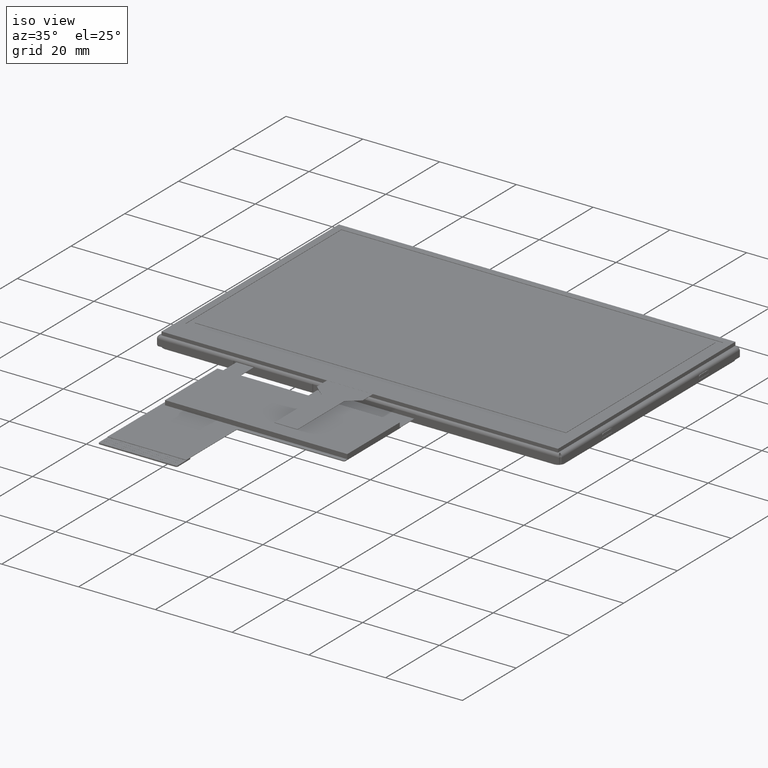
[diagram: clean part render]
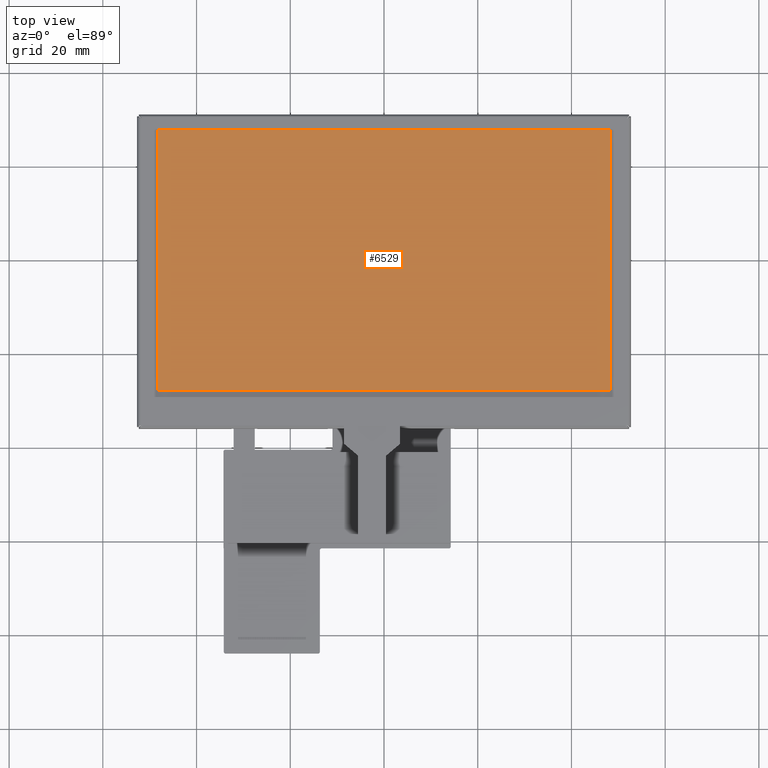
[diagram: tour spotlight — one face highlighted and labeled with its STEP entity id]
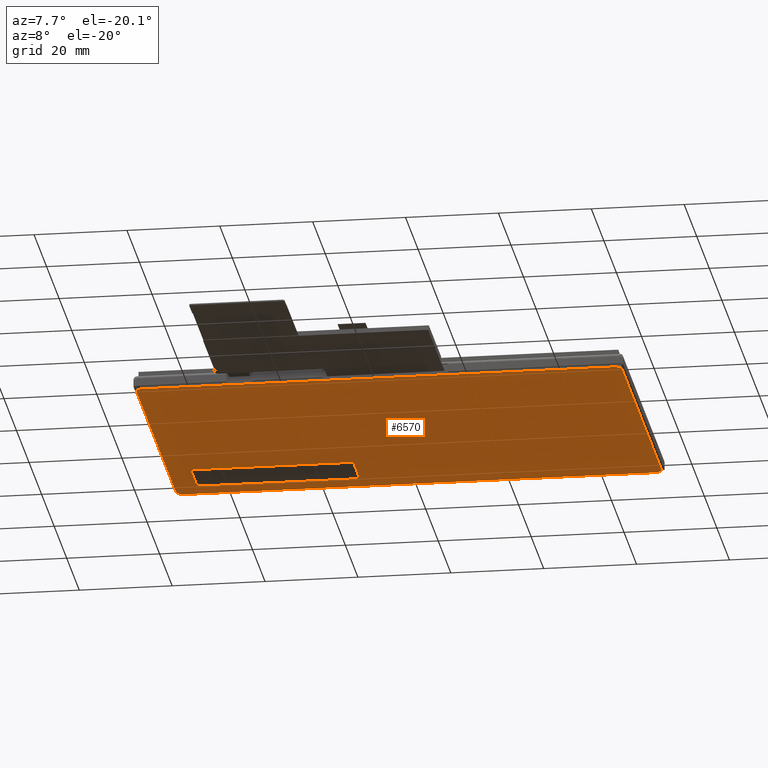
[diagram: tour spotlight — one face highlighted and labeled with its STEP entity id]
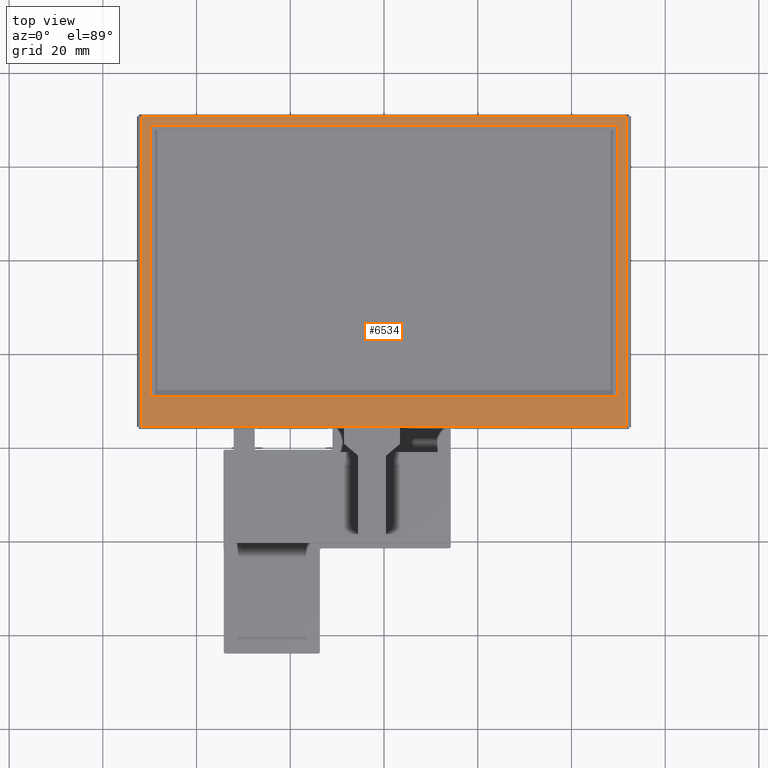
[diagram: tour spotlight — one face highlighted and labeled with its STEP entity id]
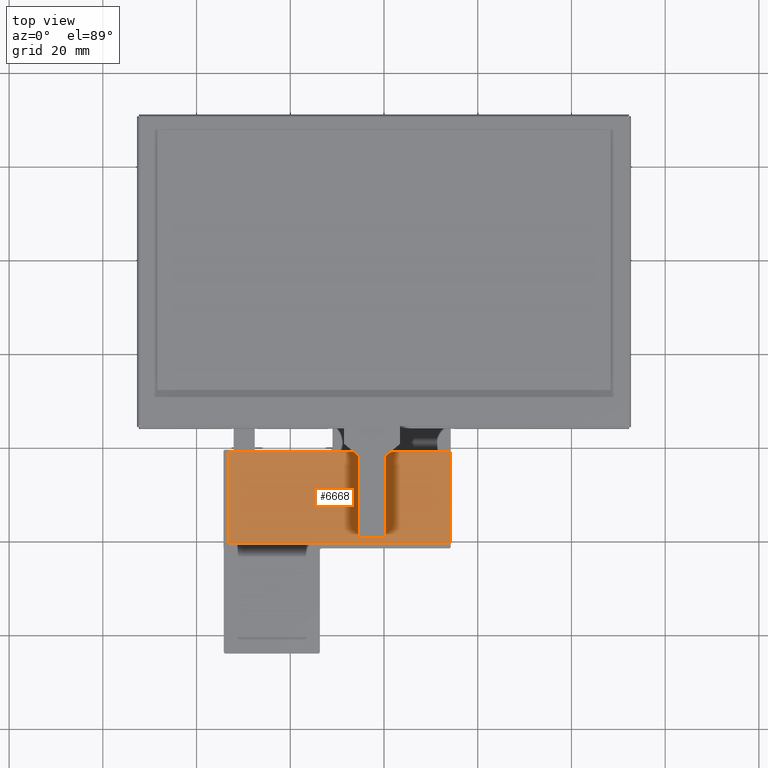
[diagram: tour spotlight — one face highlighted and labeled with its STEP entity id]
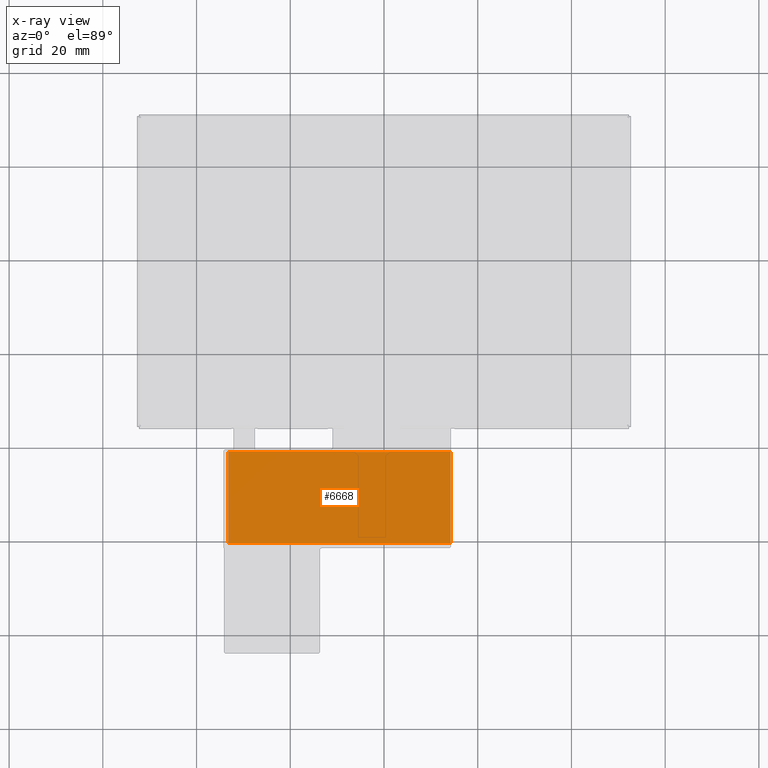
[diagram: x-ray of the same camera — body ghosted, this tour face saturated]
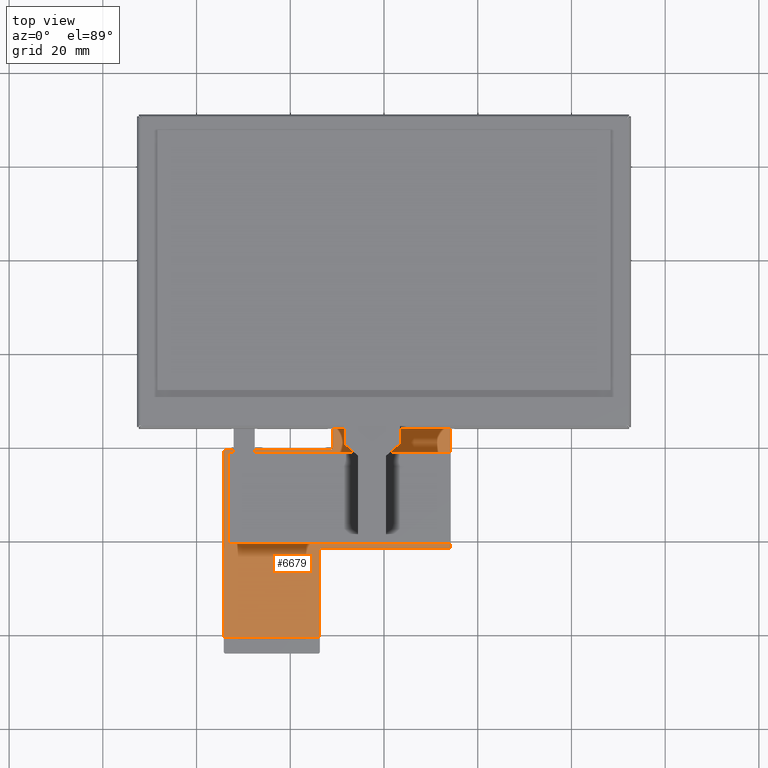
[diagram: tour spotlight — one face highlighted and labeled with its STEP entity id]
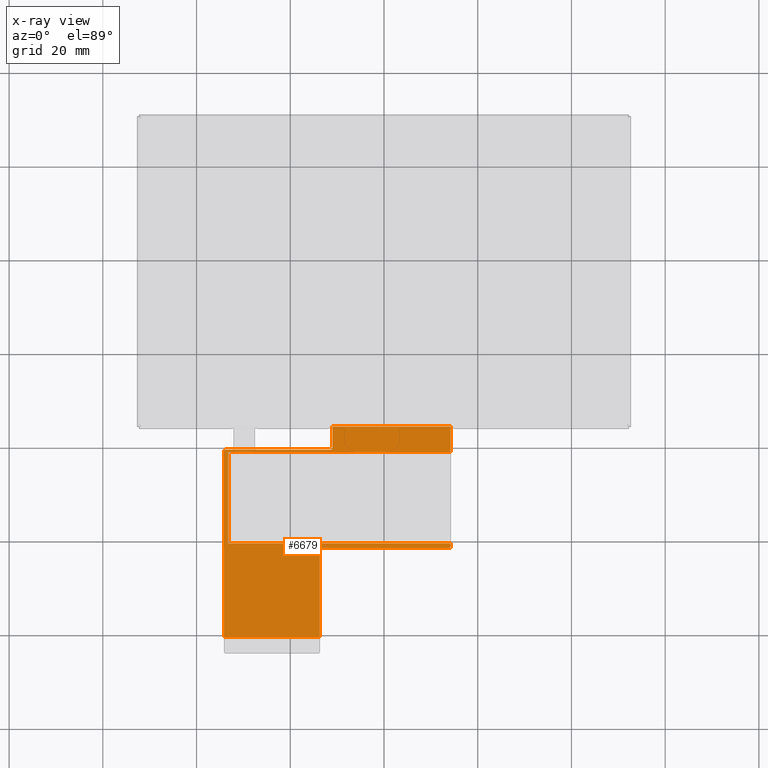
[diagram: x-ray of the same camera — body ghosted, this tour face saturated]
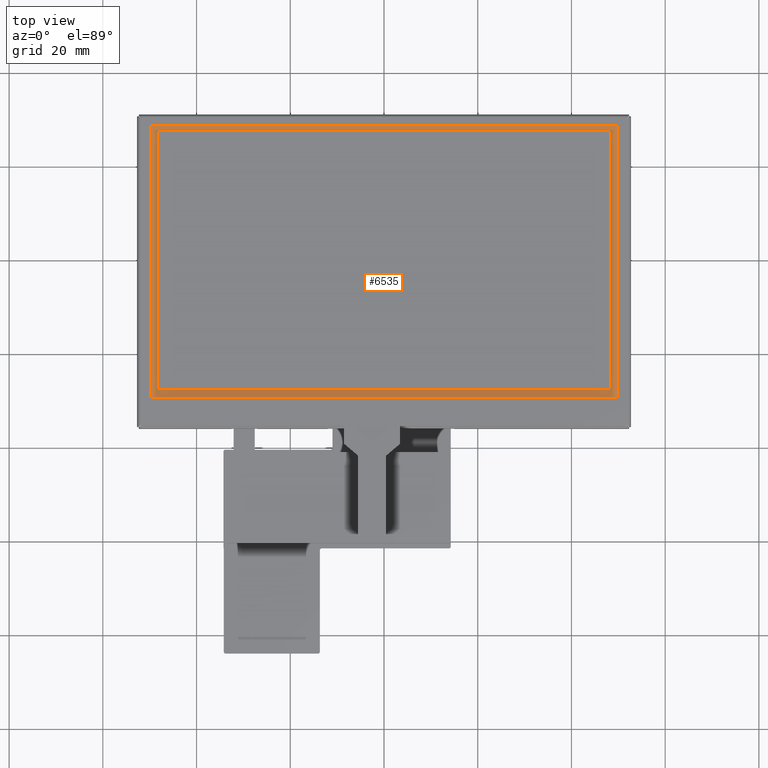
[diagram: tour spotlight — one face highlighted and labeled with its STEP entity id]
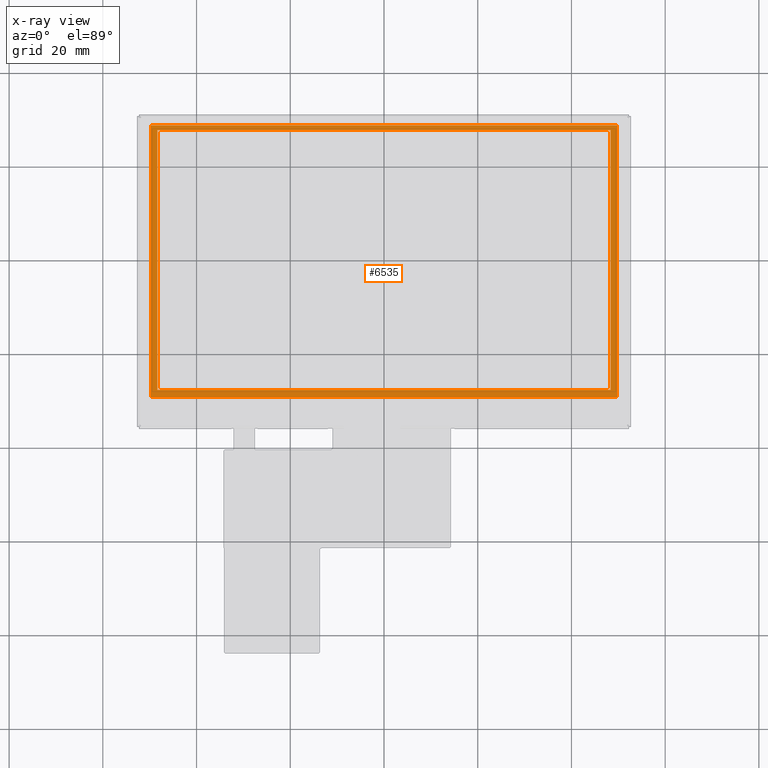
[diagram: x-ray of the same camera — body ghosted, this tour face saturated]
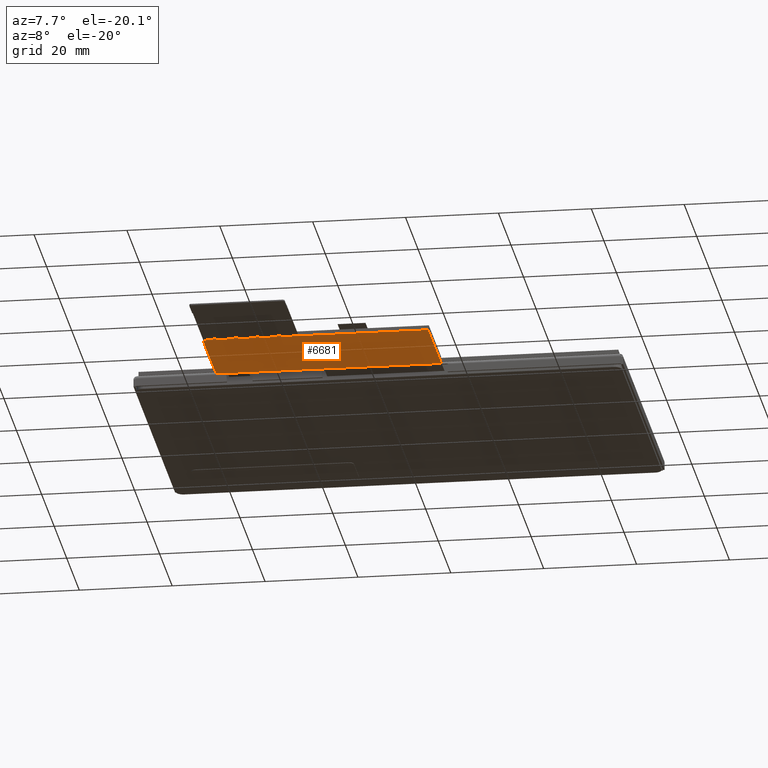
[diagram: tour spotlight — one face highlighted and labeled with its STEP entity id]
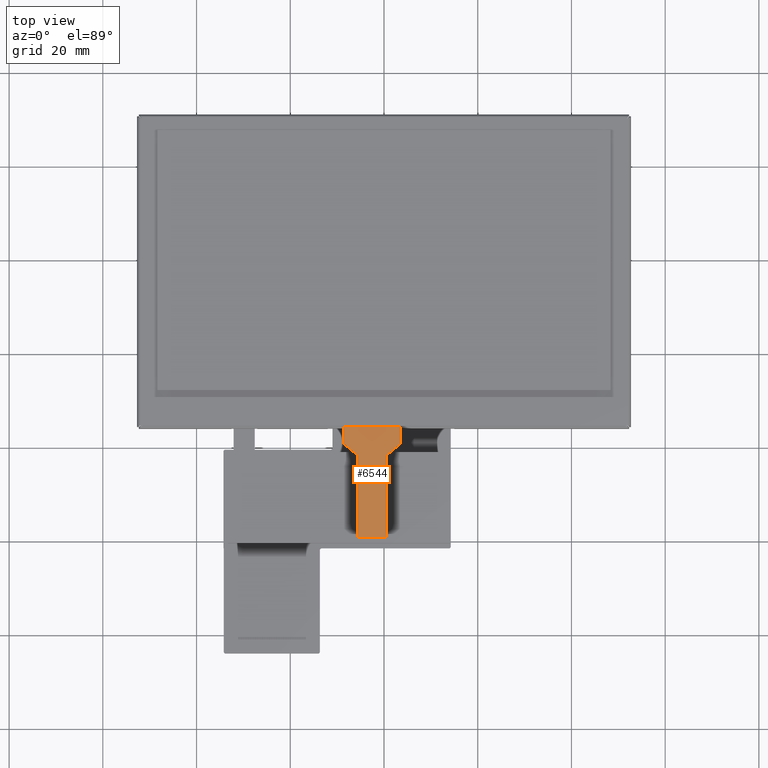
[diagram: tour spotlight — one face highlighted and labeled with its STEP entity id]
A machine part: a face-by-face anatomy tour. The part has 349 B-rep faces; the first image is the clean iso view, then the 8 largest visible faces are spotlighted one at a time (largest first), each with its STEP entity span.

Face 1 — top view, entity #6529. In plain terms, the highlighted planar face has unit normal (0, 0, 1).
Definition (entity closure, byte-faithful):
#69=PLANE('',#6911);
#381=FACE_OUTER_BOUND('',#730,.T.);
#730=EDGE_LOOP('',(#4575,#4576,#4577,#4578));
#1102=LINE('',#9039,#1995);
#1103=LINE('',#9041,#1996);
#1104=LINE('',#9043,#1997);
#1105=LINE('',#9044,#1998);
#1995=VECTOR('',#7347,10.);
#1996=VECTOR('',#7348,10.);
#1997=VECTOR('',#7349,10.);
#1998=VECTOR('',#7350,10.);
#2946=VERTEX_POINT('',#9037);
#2947=VERTEX_POINT('',#9038);
#2948=VERTEX_POINT('',#9040);
#2949=VERTEX_POINT('',#9042);
#3583=EDGE_CURVE('',#2946,#2947,#1102,.T.);
#3584=EDGE_CURVE('',#2947,#2948,#1103,.T.);
#3585=EDGE_CURVE('',#2948,#2949,#1104,.T.);
#3586=EDGE_CURVE('',#2949,#2946,#1105,.T.);
#4575=ORIENTED_EDGE('',*,*,#3583,.T.);
#4576=ORIENTED_EDGE('',*,*,#3584,.T.);
#4577=ORIENTED_EDGE('',*,*,#3585,.T.);
#4578=ORIENTED_EDGE('',*,*,#3586,.T.);
#6529=ADVANCED_FACE('',(#381),#69,.T.);
#6911=AXIS2_PLACEMENT_3D('',#9036,#7345,#7346);
#7345=DIRECTION('center_axis',(0.,0.,1.));
#7346=DIRECTION('ref_axis',(1.,-2.16453909658425E-16,0.));
#7347=DIRECTION('',(2.16453909658425E-16,1.,0.));
#7348=DIRECTION('',(-1.,2.16453909658425E-16,0.));
#7349=DIRECTION('',(-2.64157342721367E-17,-1.,0.));
#7350=DIRECTION('',(1.,-9.01617351922745E-17,0.));
#9036=CARTESIAN_POINT('Origin',(-51.6500000000002,-35.3720000000001,0.));
#9037=CARTESIAN_POINT('',(48.3499999999998,-27.6720000000002,0.));
#9038=CARTESIAN_POINT('',(48.3499999999998,27.8279999999999,0.));
#9039=CARTESIAN_POINT('',(48.3499999999998,-31.5220000000002,0.));
#9040=CARTESIAN_POINT('',(-48.3500000000004,27.8279999999999,0.));
#9041=CARTESIAN_POINT('',(-1.6500000000002,27.8279999999998,0.));
#9042=CARTESIAN_POINT('',(-48.3500000000004,-27.6720000000002,0.));
#9043=CARTESIAN_POINT('',(-48.3500000000004,-3.77200000000016,0.));
#9044=CARTESIAN_POINT('',(-50.0000000000003,-27.6720000000003,0.));

Face 2 — auxiliary view, entity #6570. In plain terms, the highlighted planar face has unit normal (0, 0, 1).
Definition (entity closure, byte-faithful):
#55=FACE_BOUND('',#779,.T.);
#105=PLANE('',#6964);
#422=FACE_OUTER_BOUND('',#778,.T.);
#778=EDGE_LOOP('',(#4795,#4796,#4797,#4798,#4799,#4800,#4801,#4802));
#779=EDGE_LOOP('',(#4803,#4804,#4805,#4806,#4807,#4808,#4809,#4810));
#1088=LINE('',#8998,#1981);
#1092=LINE('',#9010,#1985);
#1096=LINE('',#9022,#1989);
#1101=LINE('',#9034,#1994);
#1207=LINE('',#9264,#2100);
#1217=LINE('',#9305,#2110);
#1223=LINE('',#9361,#2116);
#1224=LINE('',#9362,#2117);
#1981=VECTOR('',#7305,10.);
#1985=VECTOR('',#7317,10.);
#1989=VECTOR('',#7329,10.);
#1994=VECTOR('',#7342,10.);
#2100=VECTOR('',#7532,101.36);
#2110=VECTOR('',#7550,63.);
#2116=VECTOR('',#7576,101.36);
#2117=VECTOR('',#7577,63.);
#2873=CIRCLE('',#6896,1.);
#2875=CIRCLE('',#6900,1.);
#2877=CIRCLE('',#6904,1.);
#2879=CIRCLE('',#6908,1.);
#2884=CIRCLE('',#6953,1.6);
#2888=CIRCLE('',#6959,1.6);
#2890=CIRCLE('',#6962,1.6);
#2892=CIRCLE('',#6965,1.6);
#2932=VERTEX_POINT('',#8991);
#2933=VERTEX_POINT('',#8993);
#2934=VERTEX_POINT('',#8997);
#2937=VERTEX_POINT('',#9005);
#2938=VERTEX_POINT('',#9009);
#2941=VERTEX_POINT('',#9017);
#2942=VERTEX_POINT('',#9021);
#2945=VERTEX_POINT('',#9029);
#3026=VERTEX_POINT('',#9261);
#3027=VERTEX_POINT('',#9263);
#3034=VERTEX_POINT('',#9287);
#3038=VERTEX_POINT('',#9304);
#3040=VERTEX_POINT('',#9319);
#3047=VERTEX_POINT('',#9344);
#3049=VERTEX_POINT('',#9358);
#3050=VERTEX_POINT('',#9359);
#3561=EDGE_CURVE('',#2933,#2932,#2873,.T.);
#3563=EDGE_CURVE('',#2934,#2933,#1088,.T.);
#3567=EDGE_CURVE('',#2937,#2934,#2875,.T.);
#3569=EDGE_CURVE('',#2938,#2937,#1092,.T.);
#3573=EDGE_CURVE('',#2941,#2938,#2877,.T.);
#3575=EDGE_CURVE('',#2942,#2941,#1096,.T.);
#3579=EDGE_CURVE('',#2945,#2942,#2879,.T.);
#3582=EDGE_CURVE('',#2932,#2945,#1101,.T.);
#3692=EDGE_CURVE('',#3026,#3027,#1207,.T.);
#3701=EDGE_CURVE('',#3034,#3027,#2884,.T.);
#3706=EDGE_CURVE('',#3034,#3038,#1217,.T.);
#3711=EDGE_CURVE('',#3040,#3038,#2888,.T.);
#3719=EDGE_CURVE('',#3026,#3047,#2890,.T.);
#3722=EDGE_CURVE('',#3049,#3050,#2892,.T.);
#3723=EDGE_CURVE('',#3040,#3050,#1223,.T.);
#3724=EDGE_CURVE('',#3049,#3047,#1224,.T.);
#4795=ORIENTED_EDGE('',*,*,#3722,.T.);
#4796=ORIENTED_EDGE('',*,*,#3723,.F.);
#4797=ORIENTED_EDGE('',*,*,#3711,.T.);
#4798=ORIENTED_EDGE('',*,*,#3706,.F.);
#4799=ORIENTED_EDGE('',*,*,#3701,.T.);
#4800=ORIENTED_EDGE('',*,*,#3692,.F.);
#4801=ORIENTED_EDGE('',*,*,#3719,.T.);
#4802=ORIENTED_EDGE('',*,*,#3724,.F.);
#4803=ORIENTED_EDGE('',*,*,#3561,.T.);
#4804=ORIENTED_EDGE('',*,*,#3582,.T.);
#4805=ORIENTED_EDGE('',*,*,#3579,.T.);
#4806=ORIENTED_EDGE('',*,*,#3575,.T.);
#4807=ORIENTED_EDGE('',*,*,#3573,.T.);
#4808=ORIENTED_EDGE('',*,*,#3569,.T.);
#4809=ORIENTED_EDGE('',*,*,#3567,.T.);
#4810=ORIENTED_EDGE('',*,*,#3563,.T.);
#6570=ADVANCED_FACE('',(#422,#55),#105,.F.);
#6896=AXIS2_PLACEMENT_3D('',#8994,#7300,#7301);
#6900=AXIS2_PLACEMENT_3D('',#9006,#7312,#7313);
#6904=AXIS2_PLACEMENT_3D('',#9018,#7324,#7325);
#6908=AXIS2_PLACEMENT_3D('',#9030,#7336,#7337);
#6953=AXIS2_PLACEMENT_3D('',#9288,#7542,#7543);
#6959=AXIS2_PLACEMENT_3D('',#9320,#7558,#7559);
#6962=AXIS2_PLACEMENT_3D('',#9346,#7568,#7569);
#6964=AXIS2_PLACEMENT_3D('',#9357,#7572,#7573);
#6965=AXIS2_PLACEMENT_3D('',#9360,#7574,#7575);
#7300=DIRECTION('center_axis',(0.,0.,1.));
#7301=DIRECTION('ref_axis',(-0.707106781186548,0.707106781186547,0.));
#7305=DIRECTION('',(-1.,2.16453909658425E-16,0.));
#7312=DIRECTION('center_axis',(0.,0.,1.));
#7313=DIRECTION('ref_axis',(0.707106781186548,0.707106781186547,0.));
#7317=DIRECTION('',(2.16453909658425E-16,1.,0.));
#7324=DIRECTION('center_axis',(0.,0.,1.));
#7325=DIRECTION('ref_axis',(0.707106781186548,-0.707106781186547,0.));
#7329=DIRECTION('',(1.,-2.16453909658425E-16,0.));
#7336=DIRECTION('center_axis',(0.,0.,1.));
#7337=DIRECTION('ref_axis',(-0.707106781186548,-0.707106781186547,0.));
#7342=DIRECTION('',(-2.16453909658425E-16,-1.,0.));
#7532=DIRECTION('',(1.,-2.16453909658425E-16,0.));
#7542=DIRECTION('center_axis',(0.,0.,-1.));
#7543=DIRECTION('ref_axis',(1.,-2.16453909658425E-16,0.));
#7550=DIRECTION('',(2.16453909658425E-16,1.,0.));
#7558=DIRECTION('center_axis',(0.,0.,-1.));
#7559=DIRECTION('ref_axis',(2.16453909658425E-16,1.,0.));
#7568=DIRECTION('center_axis',(0.,0.,-1.));
#7569=DIRECTION('ref_axis',(-2.16453909658425E-16,-1.,0.));
#7572=DIRECTION('center_axis',(0.,0.,1.));
#7573=DIRECTION('ref_axis',(1.,-2.16453909658425E-16,0.));
#7574=DIRECTION('center_axis',(0.,0.,-1.));
#7575=DIRECTION('ref_axis',(-1.,2.16453909658425E-16,0.));
#7576=DIRECTION('',(-1.,2.16453909658425E-16,0.));
#7577=DIRECTION('',(-2.16453909658425E-16,-1.,0.));
#8991=CARTESIAN_POINT('',(-47.3000000000002,24.7779999999998,-3.90000000000001));
#8993=CARTESIAN_POINT('',(-46.3000000000002,25.7779999999998,-3.90000000000001));
#8994=CARTESIAN_POINT('Origin',(-46.3000000000002,24.7779999999998,-3.90000000000001));
#8997=CARTESIAN_POINT('',(-13.3000000000002,25.7779999999998,-3.90000000000001));
#8998=CARTESIAN_POINT('',(-23.6600000000003,25.7779999999998,-3.90000000000001));
#9005=CARTESIAN_POINT('',(-12.3000000000002,24.7779999999998,-3.90000000000001));
#9006=CARTESIAN_POINT('Origin',(-13.3000000000002,24.7779999999998,-3.90000000000001));
#9009=CARTESIAN_POINT('',(-12.3000000000002,16.7779999999998,-3.90000000000001));
#9010=CARTESIAN_POINT('',(-12.3000000000002,11.7279999999998,-3.90000000000001));
#9017=CARTESIAN_POINT('',(-13.3000000000002,15.7779999999998,-3.90000000000001));
#9018=CARTESIAN_POINT('Origin',(-13.3000000000002,16.7779999999998,-3.90000000000001));
#9021=CARTESIAN_POINT('',(-46.3000000000002,15.7779999999998,-3.90000000000001));
#9022=CARTESIAN_POINT('',(-6.16000000000029,15.7779999999998,-3.90000000000001));
#9029=CARTESIAN_POINT('',(-47.3000000000002,16.7779999999998,-3.90000000000001));
#9030=CARTESIAN_POINT('Origin',(-46.3000000000002,16.7779999999998,-3.90000000000001));
#9034=CARTESIAN_POINT('',(-47.3000000000002,6.72799999999982,-3.90000000000001));
#9261=CARTESIAN_POINT('',(-50.7000000000004,-35.4220000000002,-3.90000000000001));
#9263=CARTESIAN_POINT('',(50.6599999999997,-35.4220000000002,-3.90000000000001));
#9264=CARTESIAN_POINT('',(-50.7000000000004,-35.4220000000002,-3.90000000000001));
#9287=CARTESIAN_POINT('',(52.2599999999997,-33.8220000000003,-3.90000000000001));
#9288=CARTESIAN_POINT('Origin',(50.6599999999997,-33.8220000000003,-3.90000000000001));
#9304=CARTESIAN_POINT('',(52.2599999999997,29.1779999999999,-3.90000000000001));
#9305=CARTESIAN_POINT('',(52.2599999999997,-33.8220000000003,-3.90000000000001));
#9319=CARTESIAN_POINT('',(50.6599999999997,30.7779999999998,-3.90000000000001));
#9320=CARTESIAN_POINT('Origin',(50.6599999999997,29.1779999999999,-3.90000000000001));
#9344=CARTESIAN_POINT('',(-52.3000000000003,-33.8220000000003,-3.90000000000001));
#9346=CARTESIAN_POINT('Origin',(-50.7000000000004,-33.8220000000003,-3.90000000000001));
#9357=CARTESIAN_POINT('Origin',(-0.0200000000003797,-2.3220000000002,-3.90000000000001));
#9358=CARTESIAN_POINT('',(-52.3000000000003,29.1779999999999,-3.90000000000001));
#9359=CARTESIAN_POINT('',(-50.7000000000004,30.7779999999998,-3.90000000000001));
#9360=CARTESIAN_POINT('Origin',(-50.7000000000004,29.1779999999999,-3.90000000000001));
#9361=CARTESIAN_POINT('',(50.6599999999997,30.7779999999998,-3.90000000000001));
#9362=CARTESIAN_POINT('',(-52.3000000000003,29.1779999999999,-3.90000000000001));

Face 3 — top view, entity #6534. In plain terms, the highlighted planar face has unit normal (0, 0, 1).
Definition (entity closure, byte-faithful):
#49=FACE_BOUND('',#737,.T.);
#74=PLANE('',#6916);
#386=FACE_OUTER_BOUND('',#736,.T.);
#736=EDGE_LOOP('',(#4603,#4604,#4605,#4606));
#737=EDGE_LOOP('',(#4607,#4608,#4609,#4610));
#1107=LINE('',#9050,#2000);
#1113=LINE('',#9062,#2006);
#1116=LINE('',#9068,#2009);
#1120=LINE('',#9075,#2013);
#1126=LINE('',#9088,#2019);
#1127=LINE('',#9090,#2020);
#1128=LINE('',#9092,#2021);
#1129=LINE('',#9093,#2022);
#2000=VECTOR('',#7354,66.);
#2006=VECTOR('',#7362,103.3);
#2009=VECTOR('',#7367,66.);
#2013=VECTOR('',#7373,103.3);
#2019=VECTOR('',#7381,10.);
#2020=VECTOR('',#7382,10.);
#2021=VECTOR('',#7383,10.);
#2022=VECTOR('',#7384,10.);
#2951=VERTEX_POINT('',#9047);
#2952=VERTEX_POINT('',#9049);
#2957=VERTEX_POINT('',#9060);
#2959=VERTEX_POINT('',#9066);
#2966=VERTEX_POINT('',#9086);
#2967=VERTEX_POINT('',#9087);
#2968=VERTEX_POINT('',#9089);
#2969=VERTEX_POINT('',#9091);
#3588=EDGE_CURVE('',#2952,#2951,#1107,.T.);
#3594=EDGE_CURVE('',#2951,#2957,#1113,.T.);
#3597=EDGE_CURVE('',#2957,#2959,#1116,.T.);
#3601=EDGE_CURVE('',#2959,#2952,#1120,.T.);
#3607=EDGE_CURVE('',#2966,#2967,#1126,.T.);
#3608=EDGE_CURVE('',#2967,#2968,#1127,.T.);
#3609=EDGE_CURVE('',#2968,#2969,#1128,.T.);
#3610=EDGE_CURVE('',#2969,#2966,#1129,.T.);
#4603=ORIENTED_EDGE('',*,*,#3601,.T.);
#4604=ORIENTED_EDGE('',*,*,#3588,.T.);
#4605=ORIENTED_EDGE('',*,*,#3594,.T.);
#4606=ORIENTED_EDGE('',*,*,#3597,.T.);
#4607=ORIENTED_EDGE('',*,*,#3607,.T.);
#4608=ORIENTED_EDGE('',*,*,#3608,.T.);
#4609=ORIENTED_EDGE('',*,*,#3609,.T.);
#4610=ORIENTED_EDGE('',*,*,#3610,.T.);
#6534=ADVANCED_FACE('',(#386,#49),#74,.T.);
#6916=AXIS2_PLACEMENT_3D('',#9085,#7379,#7380);
#7354=DIRECTION('',(2.16453909658425E-16,1.,0.));
#7362=DIRECTION('',(-1.,2.16453909658425E-16,0.));
#7367=DIRECTION('',(-2.16453909658425E-16,-1.,0.));
#7373=DIRECTION('',(1.,-2.16453909658425E-16,0.));
#7379=DIRECTION('center_axis',(0.,0.,1.));
#7380=DIRECTION('ref_axis',(1.,-2.16453909658425E-16,0.));
#7381=DIRECTION('',(-2.16453909658425E-16,-1.,0.));
#7382=DIRECTION('',(-1.,9.37156858305179E-17,0.));
#7383=DIRECTION('',(-1.80328498529229E-17,1.,0.));
#7384=DIRECTION('',(1.,-2.16453909658425E-16,0.));
#9047=CARTESIAN_POINT('',(51.6499999999999,30.6279999999998,0.));
#9049=CARTESIAN_POINT('',(51.6499999999999,-35.3720000000001,0.));
#9050=CARTESIAN_POINT('',(51.6499999999999,-35.3720000000001,0.));
#9060=CARTESIAN_POINT('',(-51.6500000000002,30.6279999999998,0.));
#9062=CARTESIAN_POINT('',(51.6499999999999,30.6279999999998,0.));
#9066=CARTESIAN_POINT('',(-51.6500000000002,-35.3720000000001,0.));
#9068=CARTESIAN_POINT('',(-51.6500000000002,30.6279999999998,0.));
#9075=CARTESIAN_POINT('',(-51.6500000000002,-35.3720000000001,0.));
#9085=CARTESIAN_POINT('Origin',(-51.6500000000002,-35.3720000000001,0.));
#9086=CARTESIAN_POINT('',(49.7499999999997,28.8279999999999,0.));
#9087=CARTESIAN_POINT('',(49.7499999999997,-29.1720000000001,0.));
#9088=CARTESIAN_POINT('',(49.7499999999997,-3.27200000000005,0.));
#9089=CARTESIAN_POINT('',(-49.7500000000002,-29.1720000000001,0.));
#9090=CARTESIAN_POINT('',(-0.950000000000273,-29.1720000000001,0.));
#9091=CARTESIAN_POINT('',(-49.7500000000002,28.8279999999999,0.));
#9092=CARTESIAN_POINT('',(-49.7500000000002,-32.2720000000001,0.));
#9093=CARTESIAN_POINT('',(-50.7000000000002,28.828,0.));

Face 4 — top view, entity #6668. An x-ray twin of the same camera follows (body ghosted, this face saturated) — the face is partly hidden behind the body. In plain terms, the highlighted planar face has unit normal (0, 0, 1).
Definition (entity closure, byte-faithful):
#178=PLANE('',#7076);
#520=FACE_OUTER_BOUND('',#883,.T.);
#883=EDGE_LOOP('',(#5311,#5312,#5313,#5314));
#1418=LINE('',#10740,#2311);
#1421=LINE('',#10746,#2314);
#1423=LINE('',#10750,#2316);
#1424=LINE('',#10751,#2317);
#2311=VECTOR('',#7989,47.5);
#2314=VECTOR('',#7994,19.5);
#2316=VECTOR('',#7998,19.5);
#2317=VECTOR('',#7999,47.5);
#3176=VERTEX_POINT('',#10737);
#3177=VERTEX_POINT('',#10739);
#3179=VERTEX_POINT('',#10745);
#3180=VERTEX_POINT('',#10749);
#3957=EDGE_CURVE('',#3177,#3176,#1418,.T.);
#3960=EDGE_CURVE('',#3179,#3177,#1421,.T.);
#3962=EDGE_CURVE('',#3176,#3180,#1423,.T.);
#3963=EDGE_CURVE('',#3180,#3179,#1424,.T.);
#5311=ORIENTED_EDGE('',*,*,#3960,.T.);
#5312=ORIENTED_EDGE('',*,*,#3957,.T.);
#5313=ORIENTED_EDGE('',*,*,#3962,.T.);
#5314=ORIENTED_EDGE('',*,*,#3963,.T.);
#6668=ADVANCED_FACE('',(#520),#178,.T.);
#7076=AXIS2_PLACEMENT_3D('',#10748,#7996,#7997);
#7989=DIRECTION('',(1.,-2.16453909658425E-16,0.));
#7994=DIRECTION('',(-2.16453909658425E-16,-1.,0.));
#7996=DIRECTION('center_axis',(0.,0.,1.));
#7997=DIRECTION('ref_axis',(1.,-2.16453909658425E-16,0.));
#7998=DIRECTION('',(2.16453909658425E-16,1.,0.));
#7999=DIRECTION('',(-1.,2.16453909658425E-16,0.));
#10737=CARTESIAN_POINT('',(14.2499999999998,-60.351999999753,-1.70000000000001));
#10739=CARTESIAN_POINT('',(-33.2400000000001,-60.351999999753,-1.70000000000001));
#10740=CARTESIAN_POINT('',(-33.2400000000001,-60.351999999753,-1.70000000000001));
#10745=CARTESIAN_POINT('',(-33.2400000000001,-40.85199999975,-1.70000000000001));
#10746=CARTESIAN_POINT('',(-33.2400000000001,-40.85199999975,-1.70000000000001));
#10748=CARTESIAN_POINT('Origin',(-11.0000000000002,-52.6707898480001,-1.70000000000001));
#10749=CARTESIAN_POINT('',(14.2499999999998,-40.85199999975,-1.70000000000001));
#10750=CARTESIAN_POINT('',(14.2499999999998,-60.351999999753,-1.70000000000001));
#10751=CARTESIAN_POINT('',(14.2599999999999,-40.85199999975,-1.70000000000001));

Face 5 — top view, entity #6679. An x-ray twin of the same camera follows (body ghosted, this face saturated) — the face is partly hidden behind the body. In plain terms, the highlighted planar face has unit normal (0, 0, 1).
Definition (entity closure, byte-faithful):
#184=PLANE('',#7098);
#531=FACE_OUTER_BOUND('',#894,.T.);
#894=EDGE_LOOP('',(#5367,#5368,#5369,#5370,#5371,#5372,#5373,#5374,#5375,
#5376,#5377,#5378,#5379,#5380,#5381,#5382));
#1212=LINE('',#9273,#2105);
#1416=LINE('',#10736,#2309);
#1420=LINE('',#10744,#2313);
#1427=LINE('',#10757,#2320);
#1432=LINE('',#10778,#2325);
#1450=LINE('',#10829,#2343);
#1453=LINE('',#10839,#2346);
#1454=LINE('',#10840,#2347);
#1455=LINE('',#10842,#2348);
#1456=LINE('',#10845,#2349);
#1457=LINE('',#10847,#2350);
#1458=LINE('',#10848,#2351);
#2105=VECTOR('',#7537,10.);
#2309=VECTOR('',#7987,47.5);
#2313=VECTOR('',#7993,19.5);
#2320=VECTOR('',#8004,9.597074687738);
#2325=VECTOR('',#8017,22.38707468774);
#2343=VECTOR('',#8061,21.65);
#2346=VECTOR('',#8072,42.72);
#2347=VECTOR('',#8073,10.);
#2348=VECTOR('',#8074,27.15);
#2349=VECTOR('',#8077,0.67);
#2350=VECTOR('',#8078,47.5);
#2351=VECTOR('',#8079,10.5);
#2915=CIRCLE('',#7080,0.402925312262);
#2919=CIRCLE('',#7089,0.4);
#2923=CIRCLE('',#7096,0.4);
#2925=CIRCLE('',#7099,0.4);
#3028=VERTEX_POINT('',#9266);
#3031=VERTEX_POINT('',#9271);
#3174=VERTEX_POINT('',#10734);
#3175=VERTEX_POINT('',#10735);
#3178=VERTEX_POINT('',#10743);
#3182=VERTEX_POINT('',#10755);
#3184=VERTEX_POINT('',#10761);
#3189=VERTEX_POINT('',#10776);
#3197=VERTEX_POINT('',#10801);
#3208=VERTEX_POINT('',#10826);
#3209=VERTEX_POINT('',#10828);
#3211=VERTEX_POINT('',#10833);
#3212=VERTEX_POINT('',#10838);
#3213=VERTEX_POINT('',#10841);
#3214=VERTEX_POINT('',#10843);
#3215=VERTEX_POINT('',#10846);
#3697=EDGE_CURVE('',#3031,#3028,#1212,.T.);
#3955=EDGE_CURVE('',#3174,#3175,#1416,.T.);
#3959=EDGE_CURVE('',#3178,#3175,#1420,.T.);
#3966=EDGE_CURVE('',#3031,#3182,#1427,.T.);
#3969=EDGE_CURVE('',#3182,#3184,#2915,.T.);
#3974=EDGE_CURVE('',#3184,#3189,#1432,.T.);
#3987=EDGE_CURVE('',#3189,#3197,#2919,.T.);
#3999=EDGE_CURVE('',#3209,#3208,#1450,.T.);
#4002=EDGE_CURVE('',#3208,#3211,#2923,.T.);
#4004=EDGE_CURVE('',#3197,#3212,#1453,.T.);
#4005=EDGE_CURVE('',#3212,#3209,#1454,.T.);
#4006=EDGE_CURVE('',#3211,#3213,#1455,.T.);
#4007=EDGE_CURVE('',#3214,#3213,#2925,.T.);
#4008=EDGE_CURVE('',#3214,#3174,#1456,.T.);
#4009=EDGE_CURVE('',#3215,#3178,#1457,.T.);
#4010=EDGE_CURVE('',#3215,#3028,#1458,.T.);
#5367=ORIENTED_EDGE('',*,*,#3697,.F.);
#5368=ORIENTED_EDGE('',*,*,#3966,.T.);
#5369=ORIENTED_EDGE('',*,*,#3969,.T.);
#5370=ORIENTED_EDGE('',*,*,#3974,.T.);
#5371=ORIENTED_EDGE('',*,*,#3987,.T.);
#5372=ORIENTED_EDGE('',*,*,#4004,.T.);
#5373=ORIENTED_EDGE('',*,*,#4005,.T.);
#5374=ORIENTED_EDGE('',*,*,#3999,.T.);
#5375=ORIENTED_EDGE('',*,*,#4002,.T.);
#5376=ORIENTED_EDGE('',*,*,#4006,.T.);
#5377=ORIENTED_EDGE('',*,*,#4007,.F.);
#5378=ORIENTED_EDGE('',*,*,#4008,.T.);
#5379=ORIENTED_EDGE('',*,*,#3955,.T.);
#5380=ORIENTED_EDGE('',*,*,#3959,.F.);
#5381=ORIENTED_EDGE('',*,*,#4009,.F.);
#5382=ORIENTED_EDGE('',*,*,#4010,.T.);
#6679=ADVANCED_FACE('',(#531),#184,.T.);
#7080=AXIS2_PLACEMENT_3D('',#10763,#8010,#8011);
#7089=AXIS2_PLACEMENT_3D('',#10803,#8041,#8042);
#7096=AXIS2_PLACEMENT_3D('',#10835,#8066,#8067);
#7098=AXIS2_PLACEMENT_3D('',#10837,#8070,#8071);
#7099=AXIS2_PLACEMENT_3D('',#10844,#8075,#8076);
#7537=DIRECTION('',(1.,-2.16453909658425E-16,0.));
#7987=DIRECTION('',(-1.,2.16453909658425E-16,0.));
#7993=DIRECTION('',(-2.16453909658425E-16,-1.,0.));
#8004=DIRECTION('',(-2.16453909658425E-16,-1.,0.));
#8010=DIRECTION('center_axis',(0.,0.,-1.));
#8011=DIRECTION('ref_axis',(1.,-2.16453909658425E-16,0.));
#8017=DIRECTION('',(-1.,2.16453909658425E-16,0.));
#8041=DIRECTION('center_axis',(0.,0.,1.));
#8042=DIRECTION('ref_axis',(2.16453909658425E-16,1.,0.));
#8061=DIRECTION('',(2.16453909658425E-16,1.,0.));
#8066=DIRECTION('center_axis',(0.,0.,-1.));
#8067=DIRECTION('ref_axis',(-1.,2.16453909658425E-16,0.));
#8070=DIRECTION('center_axis',(0.,0.,1.));
#8071=DIRECTION('ref_axis',(1.,-2.16453909658425E-16,0.));
#8072=DIRECTION('',(-2.16453909658425E-16,-1.,0.));
#8073=DIRECTION('',(1.,-2.16453909658425E-16,0.));
#8074=DIRECTION('',(1.,-2.16453909658425E-16,0.));
#8075=DIRECTION('center_axis',(0.,0.,-1.));
#8076=DIRECTION('ref_axis',(0.707106781186296,-0.707106781186799,0.));
#8077=DIRECTION('',(2.16453909658425E-16,1.,0.));
#8078=DIRECTION('',(-1.,2.16453909658425E-16,0.));
#8079=DIRECTION('',(2.16453909658425E-16,1.,0.));
#9266=CARTESIAN_POINT('',(14.2499999999998,-35.4220000000002,-2.90000000000001));
#9271=CARTESIAN_POINT('',(-11.0000000000002,-35.4220000000002,-2.90000000000001));
#9273=CARTESIAN_POINT('',(-31.6500000000002,-35.4220000000002,-2.90000000000001));
#10734=CARTESIAN_POINT('',(14.2499999999998,-60.351999999753,-2.90000000000001));
#10735=CARTESIAN_POINT('',(-33.2400000000001,-60.351999999753,-2.90000000000001));
#10736=CARTESIAN_POINT('',(14.2599999999999,-60.351999999753,-2.90000000000001));
#10743=CARTESIAN_POINT('',(-33.2400000000001,-40.85199999975,-2.90000000000001));
#10744=CARTESIAN_POINT('',(-33.2400000000001,-40.85199999975,-2.90000000000001));
#10755=CARTESIAN_POINT('',(-11.0000000000002,-39.9490746874901,-2.90000000000001));
#10757=CARTESIAN_POINT('',(-11.0000000000002,-30.3519999997501,-2.90000000000001));
#10761=CARTESIAN_POINT('',(-11.4029253122624,-40.3519999997501,-2.90000000000001));
#10763=CARTESIAN_POINT('Origin',(-11.4029253122624,-39.9490746874901,-2.90000000000001));
#10776=CARTESIAN_POINT('',(-33.7900000000002,-40.3519999997501,-2.90000000000001));
#10778=CARTESIAN_POINT('',(-11.4029253122624,-40.3519999997501,-2.90000000000001));
#10801=CARTESIAN_POINT('',(-34.1900000000001,-40.7519999997501,-2.90000000000001));
#10803=CARTESIAN_POINT('Origin',(-33.7900000000002,-40.7519999997501,-2.90000000000001));
#10826=CARTESIAN_POINT('',(-13.6900000000003,-61.8219999997531,-2.90000000000001));
#10828=CARTESIAN_POINT('',(-13.6900000000003,-80.3719999997502,-2.90000000000001));
#10829=CARTESIAN_POINT('',(-13.6900000000003,-83.47199999975,-2.90000000000001));
#10833=CARTESIAN_POINT('',(-13.2900000000004,-61.421999999753,-2.90000000000001));
#10835=CARTESIAN_POINT('Origin',(-13.2900000000004,-61.8219999997531,-2.90000000000001));
#10837=CARTESIAN_POINT('Origin',(-11.0000000000002,-52.6707898480001,-2.90000000000001));
#10838=CARTESIAN_POINT('',(-34.1900000000001,-80.3719999997502,-2.90000000000001));
#10839=CARTESIAN_POINT('',(-34.1900000000001,-40.7519999997501,-2.90000000000001));
#10840=CARTESIAN_POINT('',(-22.595,-80.37199999975,-2.90000000000001));
#10841=CARTESIAN_POINT('',(13.8499999999999,-61.421999999753,-2.90000000000001));
#10842=CARTESIAN_POINT('',(-13.2900000000004,-61.421999999753,-2.90000000000001));
#10843=CARTESIAN_POINT('',(14.2499999999998,-61.021999999753,-2.90000000000001));
#10844=CARTESIAN_POINT('Origin',(13.8499999999999,-61.021999999753,-2.90000000000001));
#10845=CARTESIAN_POINT('',(14.2499999999998,-61.0219999997531,-2.90000000000001));
#10846=CARTESIAN_POINT('',(14.2499999999998,-40.85199999975,-2.90000000000001));
#10847=CARTESIAN_POINT('',(14.2599999999999,-40.85199999975,-2.90000000000001));
#10848=CARTESIAN_POINT('',(14.2499999999998,-40.85199999975,-2.90000000000001));

Face 6 — top view, entity #6535. An x-ray twin of the same camera follows (body ghosted, this face saturated) — the face is partly hidden behind the body. In plain terms, the highlighted planar face has unit normal (0, 0, -1).
Definition (entity closure, byte-faithful):
#50=FACE_BOUND('',#739,.T.);
#75=PLANE('',#6917);
#387=FACE_OUTER_BOUND('',#738,.T.);
#738=EDGE_LOOP('',(#4611,#4612,#4613,#4614));
#739=EDGE_LOOP('',(#4615,#4616,#4617,#4618));
#1130=LINE('',#9097,#2023);
#1131=LINE('',#9099,#2024);
#1132=LINE('',#9101,#2025);
#1133=LINE('',#9102,#2026);
#1134=LINE('',#9105,#2027);
#1135=LINE('',#9107,#2028);
#1136=LINE('',#9109,#2029);
#1137=LINE('',#9110,#2030);
#2023=VECTOR('',#7387,10.);
#2024=VECTOR('',#7388,10.);
#2025=VECTOR('',#7389,10.);
#2026=VECTOR('',#7390,10.);
#2027=VECTOR('',#7391,10.);
#2028=VECTOR('',#7392,10.);
#2029=VECTOR('',#7393,10.);
#2030=VECTOR('',#7394,10.);
#2970=VERTEX_POINT('',#9095);
#2971=VERTEX_POINT('',#9096);
#2972=VERTEX_POINT('',#9098);
#2973=VERTEX_POINT('',#9100);
#2974=VERTEX_POINT('',#9103);
#2975=VERTEX_POINT('',#9104);
#2976=VERTEX_POINT('',#9106);
#2977=VERTEX_POINT('',#9108);
#3611=EDGE_CURVE('',#2970,#2971,#1130,.T.);
#3612=EDGE_CURVE('',#2972,#2970,#1131,.T.);
#3613=EDGE_CURVE('',#2973,#2972,#1132,.T.);
#3614=EDGE_CURVE('',#2971,#2973,#1133,.T.);
#3615=EDGE_CURVE('',#2974,#2975,#1134,.T.);
#3616=EDGE_CURVE('',#2976,#2974,#1135,.T.);
#3617=EDGE_CURVE('',#2977,#2976,#1136,.T.);
#3618=EDGE_CURVE('',#2975,#2977,#1137,.T.);
#4611=ORIENTED_EDGE('',*,*,#3611,.F.);
#4612=ORIENTED_EDGE('',*,*,#3612,.F.);
#4613=ORIENTED_EDGE('',*,*,#3613,.F.);
#4614=ORIENTED_EDGE('',*,*,#3614,.F.);
#4615=ORIENTED_EDGE('',*,*,#3615,.F.);
#4616=ORIENTED_EDGE('',*,*,#3616,.F.);
#4617=ORIENTED_EDGE('',*,*,#3617,.F.);
#4618=ORIENTED_EDGE('',*,*,#3618,.F.);
#6535=ADVANCED_FACE('',(#387,#50),#75,.F.);
#6917=AXIS2_PLACEMENT_3D('',#9094,#7385,#7386);
#7385=DIRECTION('center_axis',(0.,0.,-1.));
#7386=DIRECTION('ref_axis',(-1.,2.16453909658425E-16,0.));
#7387=DIRECTION('',(-1.,9.37156858305179E-17,0.));
#7388=DIRECTION('',(-2.16453909658425E-16,-1.,0.));
#7389=DIRECTION('',(1.,-2.16453909658425E-16,0.));
#7390=DIRECTION('',(-1.80328498529229E-17,1.,0.));
#7391=DIRECTION('',(-1.,2.16453909658425E-16,0.));
#7392=DIRECTION('',(2.16453909658425E-16,1.,0.));
#7393=DIRECTION('',(1.,-9.01617351922745E-17,0.));
#7394=DIRECTION('',(-2.64157342721367E-17,-1.,0.));
#9094=CARTESIAN_POINT('Origin',(-2.8421709430404E-13,-0.172000000000025,
-0.0999999999999979));
#9095=CARTESIAN_POINT('',(49.7499999999997,-29.1720000000001,-0.0999999999999979));
#9096=CARTESIAN_POINT('',(-49.7500000000002,-29.1720000000001,-0.0999999999999979));
#9097=CARTESIAN_POINT('',(-49.7500000000002,-29.1720000000001,-0.0999999999999979));
#9098=CARTESIAN_POINT('',(49.7499999999997,28.8279999999999,-0.0999999999999979));
#9099=CARTESIAN_POINT('',(49.7499999999997,-29.1720000000001,-0.0999999999999979));
#9100=CARTESIAN_POINT('',(-49.7500000000002,28.8279999999999,-0.0999999999999979));
#9101=CARTESIAN_POINT('',(49.7499999999997,28.8279999999999,-0.0999999999999979));
#9102=CARTESIAN_POINT('',(-49.7500000000002,28.8279999999999,-0.0999999999999979));
#9103=CARTESIAN_POINT('',(48.3499999999998,27.8279999999999,-0.0999999999999979));
#9104=CARTESIAN_POINT('',(-48.3500000000004,27.8279999999999,-0.0999999999999979));
#9105=CARTESIAN_POINT('',(-48.3500000000004,27.8279999999999,-0.0999999999999979));
#9106=CARTESIAN_POINT('',(48.3499999999998,-27.6720000000002,-0.0999999999999979));
#9107=CARTESIAN_POINT('',(48.3499999999998,27.8279999999999,-0.0999999999999979));
#9108=CARTESIAN_POINT('',(-48.3500000000004,-27.6720000000002,-0.0999999999999979));
#9109=CARTESIAN_POINT('',(48.3499999999998,-27.6720000000002,-0.0999999999999979));
#9110=CARTESIAN_POINT('',(-48.3500000000004,-27.6720000000002,-0.0999999999999979));

Face 7 — auxiliary view, entity #6681. In plain terms, the highlighted planar face has unit normal (0, 0, -1).
Definition (entity closure, byte-faithful):
#186=PLANE('',#7101);
#533=FACE_OUTER_BOUND('',#896,.T.);
#896=EDGE_LOOP('',(#5390,#5391,#5392,#5393,#5394,#5395));
#1429=LINE('',#10767,#2322);
#1435=LINE('',#10785,#2328);
#1461=LINE('',#10853,#2354);
#1462=LINE('',#10857,#2355);
#2322=VECTOR('',#8014,48.11);
#2328=VECTOR('',#8022,20.67);
#2354=VECTOR('',#8084,48.11);
#2355=VECTOR('',#8089,20.67);
#2917=CIRCLE('',#7085,0.4);
#2926=CIRCLE('',#7102,0.4);
#3185=VERTEX_POINT('',#10765);
#3186=VERTEX_POINT('',#10766);
#3191=VERTEX_POINT('',#10783);
#3192=VERTEX_POINT('',#10784);
#3216=VERTEX_POINT('',#10850);
#3217=VERTEX_POINT('',#10855);
#3970=EDGE_CURVE('',#3185,#3186,#1429,.T.);
#3977=EDGE_CURVE('',#3191,#3192,#1435,.T.);
#3982=EDGE_CURVE('',#3192,#3185,#2917,.T.);
#4013=EDGE_CURVE('',#3216,#3191,#1461,.T.);
#4014=EDGE_CURVE('',#3216,#3217,#2926,.T.);
#4015=EDGE_CURVE('',#3186,#3217,#1462,.T.);
#5390=ORIENTED_EDGE('',*,*,#4014,.F.);
#5391=ORIENTED_EDGE('',*,*,#4013,.T.);
#5392=ORIENTED_EDGE('',*,*,#3977,.T.);
#5393=ORIENTED_EDGE('',*,*,#3982,.T.);
#5394=ORIENTED_EDGE('',*,*,#3970,.T.);
#5395=ORIENTED_EDGE('',*,*,#4015,.T.);
#6681=ADVANCED_FACE('',(#533),#186,.T.);
#7085=AXIS2_PLACEMENT_3D('',#10793,#8030,#8031);
#7101=AXIS2_PLACEMENT_3D('',#10854,#8085,#8086);
#7102=AXIS2_PLACEMENT_3D('',#10856,#8087,#8088);
#8014=DIRECTION('',(1.,-2.16453909658425E-16,0.));
#8022=DIRECTION('',(2.16453909658425E-16,1.,0.));
#8030=DIRECTION('center_axis',(0.,0.,-1.));
#8031=DIRECTION('ref_axis',(-1.,2.16453909658425E-16,0.));
#8084=DIRECTION('',(-1.,2.16453909658425E-16,0.));
#8085=DIRECTION('center_axis',(0.,0.,-1.));
#8086=DIRECTION('ref_axis',(-2.16453909658425E-16,-1.,0.));
#8087=DIRECTION('center_axis',(0.,0.,1.));
#8088=DIRECTION('ref_axis',(0.707106781186296,-0.707106781186799,0.));
#8089=DIRECTION('',(-2.16453909658425E-16,-1.,0.));
#10765=CARTESIAN_POINT('',(-33.8500000000002,-40.3519999997501,-3.1));
#10766=CARTESIAN_POINT('',(14.2499999999998,-40.3519999997501,-3.1));
#10767=CARTESIAN_POINT('',(-33.8500000000002,-40.3519999997501,-3.1));
#10783=CARTESIAN_POINT('',(-34.2500000000001,-61.421999999753,-3.1));
#10784=CARTESIAN_POINT('',(-34.2500000000001,-40.7519999997501,-3.1));
#10785=CARTESIAN_POINT('',(-34.2500000000001,-61.421999999753,-3.1));
#10793=CARTESIAN_POINT('Origin',(-33.8500000000002,-40.7519999997501,-3.1));
#10850=CARTESIAN_POINT('',(13.8499999999999,-61.421999999753,-3.1));
#10853=CARTESIAN_POINT('',(13.8599999999997,-61.421999999753,-3.1));
#10854=CARTESIAN_POINT('Origin',(-11.0000000000002,-52.6707898480001,-3.1));
#10855=CARTESIAN_POINT('',(14.2499999999998,-61.021999999753,-3.1));
#10856=CARTESIAN_POINT('Origin',(13.8499999999999,-61.021999999753,-3.1));
#10857=CARTESIAN_POINT('',(14.2499999999998,-40.3519999997501,-3.1));

Face 8 — top view, entity #6544. In plain terms, the highlighted planar face has unit normal (0, 0, 1).
Definition (entity closure, byte-faithful):
#84=PLANE('',#6926);
#396=FACE_OUTER_BOUND('',#748,.T.);
#748=EDGE_LOOP('',(#4651,#4652,#4653,#4654,#4655,#4656,#4657,#4658));
#1124=LINE('',#9083,#2017);
#1146=LINE('',#9129,#2039);
#1147=LINE('',#9131,#2040);
#1148=LINE('',#9133,#2041);
#1149=LINE('',#9135,#2042);
#1150=LINE('',#9137,#2043);
#1151=LINE('',#9139,#2044);
#1152=LINE('',#9140,#2045);
#2017=VECTOR('',#7377,10.);
#2039=VECTOR('',#7421,3.78);
#2040=VECTOR('',#7422,3.93732142452202);
#2041=VECTOR('',#7423,17.45);
#2042=VECTOR('',#7424,6.);
#2043=VECTOR('',#7425,17.45);
#2044=VECTOR('',#7426,3.93732142452202);
#2045=VECTOR('',#7427,3.78);
#2964=VERTEX_POINT('',#9080);
#2965=VERTEX_POINT('',#9082);
#2978=VERTEX_POINT('',#9128);
#2979=VERTEX_POINT('',#9130);
#2980=VERTEX_POINT('',#9132);
#2981=VERTEX_POINT('',#9134);
#2982=VERTEX_POINT('',#9136);
#2983=VERTEX_POINT('',#9138);
#3605=EDGE_CURVE('',#2964,#2965,#1124,.T.);
#3627=EDGE_CURVE('',#2964,#2978,#1146,.T.);
#3628=EDGE_CURVE('',#2978,#2979,#1147,.T.);
#3629=EDGE_CURVE('',#2979,#2980,#1148,.T.);
#3630=EDGE_CURVE('',#2980,#2981,#1149,.T.);
#3631=EDGE_CURVE('',#2981,#2982,#1150,.T.);
#3632=EDGE_CURVE('',#2982,#2983,#1151,.T.);
#3633=EDGE_CURVE('',#2983,#2965,#1152,.T.);
#4651=ORIENTED_EDGE('',*,*,#3627,.T.);
#4652=ORIENTED_EDGE('',*,*,#3628,.T.);
#4653=ORIENTED_EDGE('',*,*,#3629,.T.);
#4654=ORIENTED_EDGE('',*,*,#3630,.T.);
#4655=ORIENTED_EDGE('',*,*,#3631,.T.);
#4656=ORIENTED_EDGE('',*,*,#3632,.T.);
#4657=ORIENTED_EDGE('',*,*,#3633,.T.);
#4658=ORIENTED_EDGE('',*,*,#3605,.F.);
#6544=ADVANCED_FACE('',(#396),#84,.T.);
#6926=AXIS2_PLACEMENT_3D('',#9127,#7419,#7420);
#7377=DIRECTION('',(1.,-2.16453909658425E-16,0.));
#7419=DIRECTION('center_axis',(0.,0.,1.));
#7420=DIRECTION('ref_axis',(1.,-2.16453909658425E-16,0.));
#7421=DIRECTION('',(-2.16453909658425E-16,-1.,0.));
#7422=DIRECTION('',(0.761939317759496,-0.647648420095497,0.));
#7423=DIRECTION('',(-2.16453909658425E-16,-1.,0.));
#7424=DIRECTION('',(1.,-2.16453909658425E-16,0.));
#7425=DIRECTION('',(2.16453909658425E-16,1.,0.));
#7426=DIRECTION('',(0.761939317759496,0.647648420095497,0.));
#7427=DIRECTION('',(2.16453909658425E-16,1.,0.));
#9080=CARTESIAN_POINT('',(-8.55000000000018,-35.3720000000001,-0.00999999999999446));
#9082=CARTESIAN_POINT('',(3.4499999999997,-35.3720000000001,-0.00999999999999446));
#9083=CARTESIAN_POINT('',(-30.1000000000002,-35.3720000000001,-0.00999999999998558));
#9127=CARTESIAN_POINT('Origin',(-8.55000000000018,-35.3720000000001,-0.00999999999999446));
#9128=CARTESIAN_POINT('',(-8.55000000000018,-39.1520000000001,-0.00999999999999446));
#9129=CARTESIAN_POINT('',(-8.55000000000018,-35.3720000000001,-0.00999999999999446));
#9130=CARTESIAN_POINT('',(-5.55000000000007,-41.7020000000001,-0.00999999999999446));
#9131=CARTESIAN_POINT('',(-8.55000000000018,-39.1520000000001,-0.00999999999999446));
#9132=CARTESIAN_POINT('',(-5.55000000000007,-59.1520000000001,-0.00999999999999446));
#9133=CARTESIAN_POINT('',(-5.55000000000007,-41.7020000000001,-0.00999999999999446));
#9134=CARTESIAN_POINT('',(0.449999999999875,-59.1520000000001,-0.00999999999999446));
#9135=CARTESIAN_POINT('',(-5.55000000000007,-59.1520000000001,-0.00999999999999446));
#9136=CARTESIAN_POINT('',(0.449999999999875,-41.7020000000001,-0.00999999999999446));
#9137=CARTESIAN_POINT('',(0.449999999999875,-59.1520000000001,-0.00999999999999446));
#9138=CARTESIAN_POINT('',(3.4499999999997,-39.1520000000001,-0.00999999999999446));
#9139=CARTESIAN_POINT('',(0.449999999999875,-41.7020000000001,-0.00999999999999446));
#9140=CARTESIAN_POINT('',(3.4499999999997,-39.1520000000001,-0.00999999999999446));